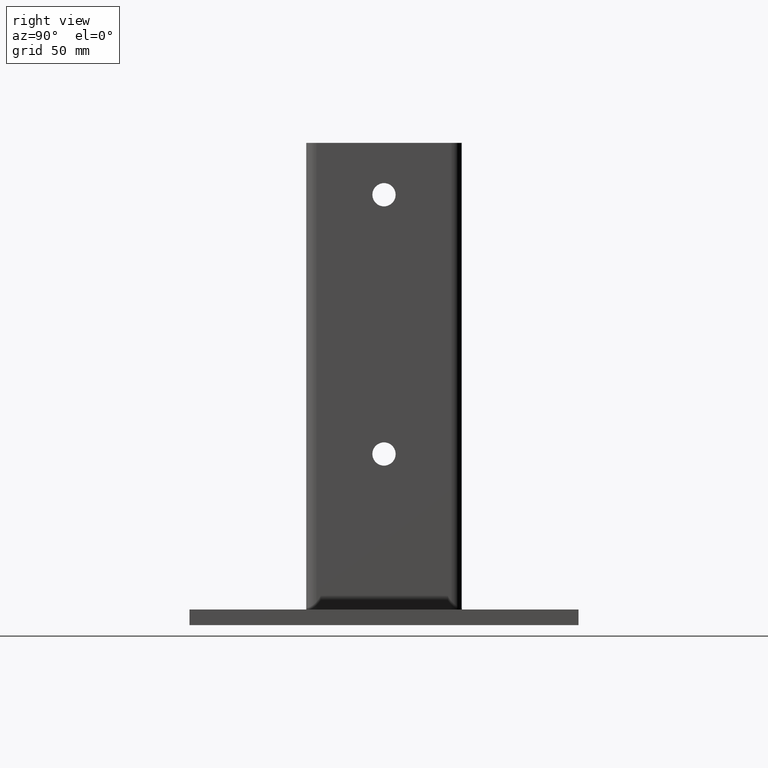
[diagram: clean part render]
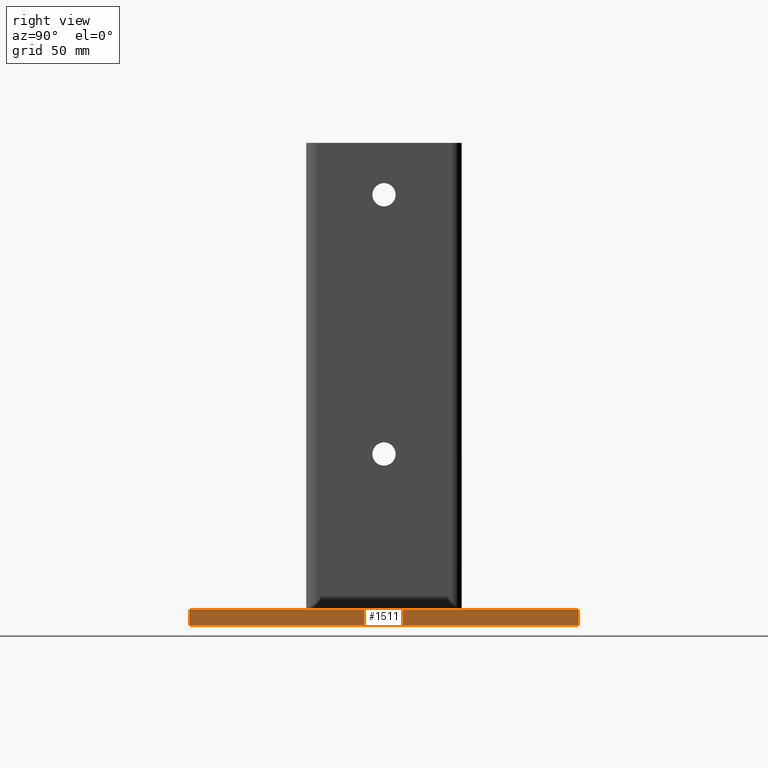
[diagram: same view with one face highlighted and labeled with its STEP entity id]
A machine part, right view. The second image highlights one B-rep face of the part: STEP entity #1511.
In plain terms, the highlighted planar face has unit normal (1, -0, 0).
Its self-contained STEP definition (entity closure, byte-faithful):
#16 = AXIS2_PLACEMENT_3D ( 'NONE', #615, #616, #617 ) ;
#91 = CARTESIAN_POINT ( 'NONE',  ( 75.00000000000000000, -75.00000000000000000, 0.0000000000000000000 ) ) ;
#96 = CARTESIAN_POINT ( 'NONE',  ( 75.00000000000000000, 75.00000000000000000, 0.0000000000000000000 ) ) ;
#97 = CARTESIAN_POINT ( 'NONE',  ( 75.00000000000000000, 75.00000000000000000, -6.000000000000000000 ) ) ;
#140 = CARTESIAN_POINT ( 'NONE',  ( 75.00000000000000000, 0.0000000000000000000, -6.000000000000000000 ) ) ;
#141 = DIRECTION ( 'NONE',  ( 0.0000000000000000000, 1.000000000000000000, 0.0000000000000000000 ) ) ;
#175 = CARTESIAN_POINT ( 'NONE',  ( 75.00000000000000000, 0.0000000000000000000, 0.0000000000000000000 ) ) ;
#176 = DIRECTION ( 'NONE',  ( 0.0000000000000000000, 1.000000000000000000, 0.0000000000000000000 ) ) ;
#179 = CARTESIAN_POINT ( 'NONE',  ( 75.00000000000000000, -75.00000000000000000, -3.000000000000000000 ) ) ;
#180 = DIRECTION ( 'NONE',  ( 0.0000000000000000000, 0.0000000000000000000, -1.000000000000000000 ) ) ;
#258 = CARTESIAN_POINT ( 'NONE',  ( 75.00000000000000000, 75.00000000000000000, -3.000000000000000000 ) ) ;
#259 = DIRECTION ( 'NONE',  ( -0.0000000000000000000, -0.0000000000000000000, 1.000000000000000000 ) ) ;
#333 = EDGE_CURVE ( 'NONE', #506, #505, #1107, .T. ) ;
#338 = EDGE_CURVE ( 'NONE', #1431, #506, #1114, .T. ) ;
#351 = EDGE_CURVE ( 'NONE', #426, #505, #907, .T. ) ;
#353 = EDGE_CURVE ( 'NONE', #426, #1431, #765, .T. ) ;
#426 = VERTEX_POINT ( 'NONE', #91 ) ;
#505 = VERTEX_POINT ( 'NONE', #96 ) ;
#506 = VERTEX_POINT ( 'NONE', #97 ) ;
#601 = CARTESIAN_POINT ( 'NONE',  ( 75.00000000000000000, -75.00000000000000000, -6.000000000000000000 ) ) ;
#614 = PLANE ( 'NONE',  #16 ) ;
#615 = CARTESIAN_POINT ( 'NONE',  ( 75.00000000000000000, -75.00000000000000000, 0.0000000000000000000 ) ) ;
#616 = DIRECTION ( 'NONE',  ( 1.000000000000000000, -0.0000000000000000000, 0.0000000000000000000 ) ) ;
#617 = DIRECTION ( 'NONE',  ( 0.0000000000000000000, 0.0000000000000000000, -1.000000000000000000 ) ) ;
#740 = VECTOR ( 'NONE', #141, 1000.000000000000000 ) ;
#745 = VECTOR ( 'NONE', #176, 1000.000000000000000 ) ;
#762 = VECTOR ( 'NONE', #180, 1000.000000000000000 ) ;
#765 = LINE ( 'NONE', #179, #762 ) ;
#790 = ORIENTED_EDGE ( 'NONE', *, *, #338, .T. ) ;
#888 = ORIENTED_EDGE ( 'NONE', *, *, #333, .T. ) ;
#907 = LINE ( 'NONE', #175, #745 ) ;
#1107 = LINE ( 'NONE', #258, #1109 ) ;
#1109 = VECTOR ( 'NONE', #259, 1000.000000000000000 ) ;
#1114 = LINE ( 'NONE', #140, #740 ) ;
#1286 = FACE_OUTER_BOUND ( 'NONE', #1388, .T. ) ;
#1373 = ORIENTED_EDGE ( 'NONE', *, *, #353, .T. ) ;
#1375 = ORIENTED_EDGE ( 'NONE', *, *, #351, .F. ) ;
#1388 = EDGE_LOOP ( 'NONE', ( #888, #1375, #1373, #790 ) ) ;
#1431 = VERTEX_POINT ( 'NONE', #601 ) ;
#1511 = ADVANCED_FACE ( 'NONE', ( #1286 ), #614, .T. ) ;